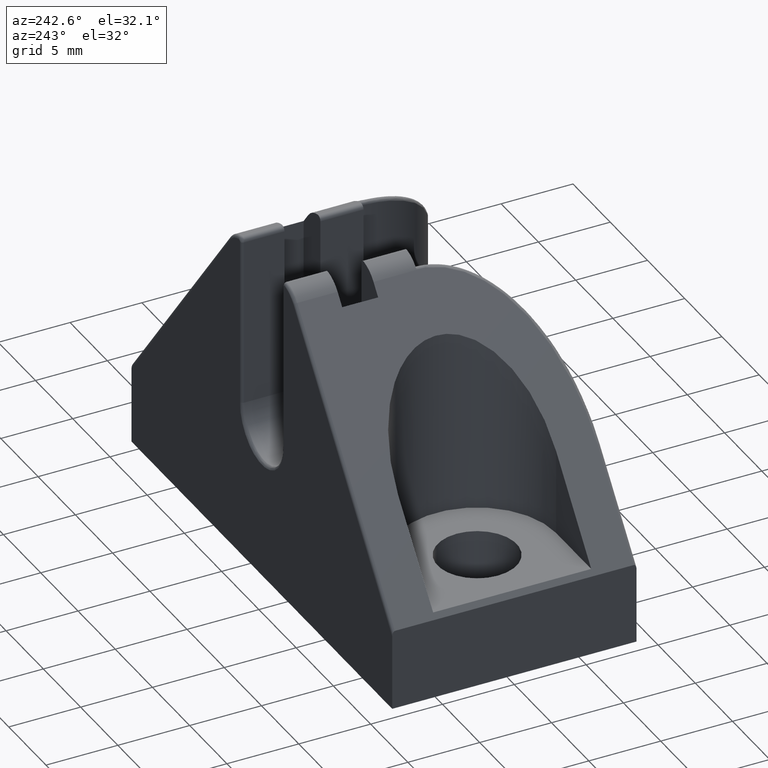
[diagram: clean part render]
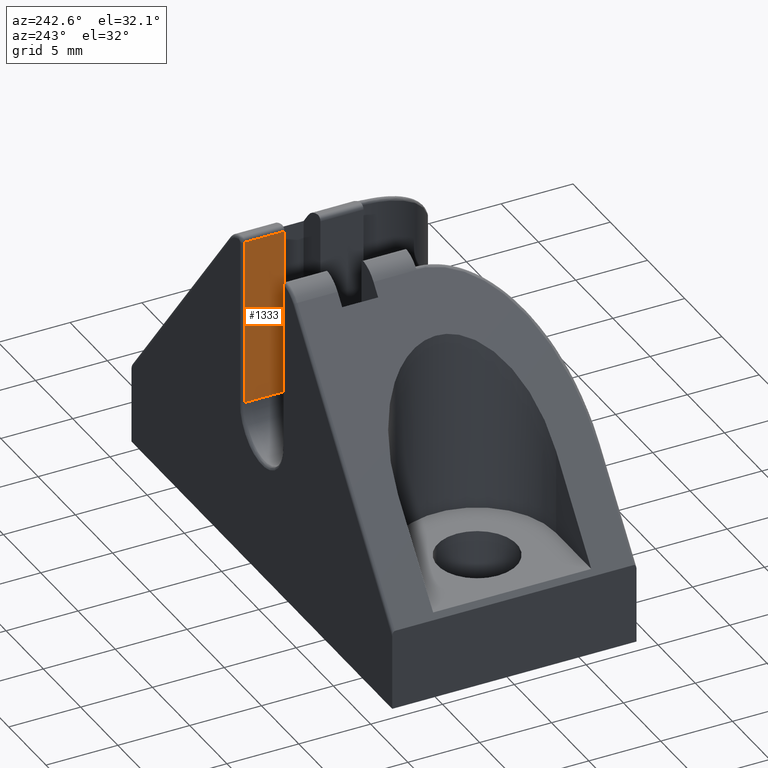
[diagram: same view with one face highlighted and labeled with its STEP entity id]
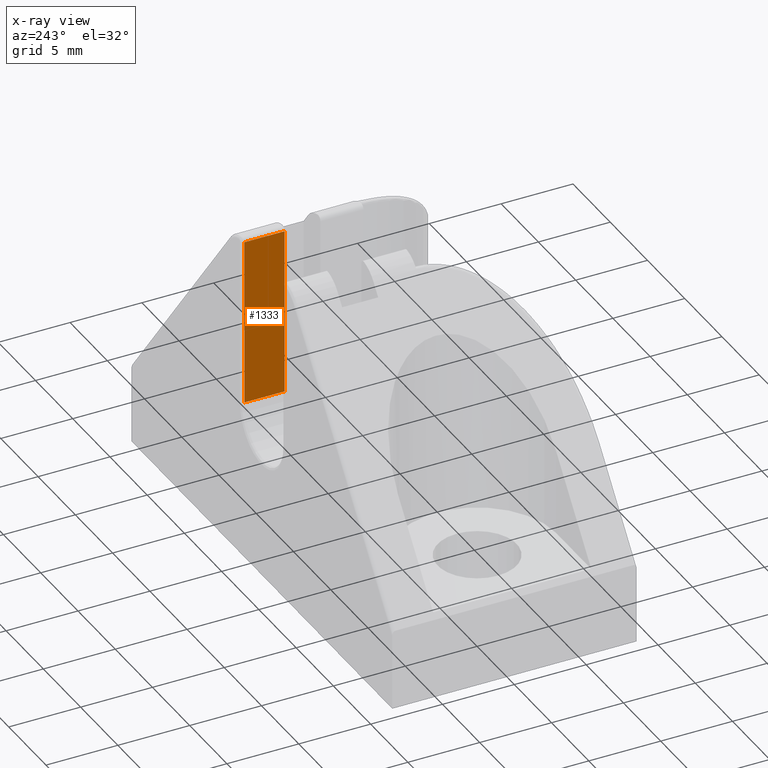
[diagram: x-ray of the same camera — body ghosted, the highlighted face saturated]
A machine part, auxiliary view. The second image highlights one B-rep face of the part: STEP entity #1333.
The next image is the same camera in x-ray: the body ghosted, the highlighted face saturated — about 2% of this face is hidden behind the body in this view.
In plain terms, the highlighted planar face has unit normal (-1, 0, 0).
Its self-contained STEP definition (entity closure, byte-faithful):
#77=PLANE('',#1468);
#124=FACE_OUTER_BOUND('',#207,.T.);
#207=EDGE_LOOP('',(#1028,#1029,#1030,#1031));
#394=LINE('',#3135,#496);
#395=LINE('',#3141,#497);
#396=LINE('',#3142,#498);
#397=LINE('',#3143,#499);
#496=VECTOR('',#1739,2.79999999700794);
#497=VECTOR('',#1746,2.79999999700795);
#498=VECTOR('',#1747,11.6839999999534);
#499=VECTOR('',#1748,11.6839999999534);
#614=VERTEX_POINT('',#3133);
#615=VERTEX_POINT('',#3134);
#616=VERTEX_POINT('',#3139);
#617=VERTEX_POINT('',#3140);
#769=EDGE_CURVE('',#614,#615,#394,.T.);
#772=EDGE_CURVE('',#616,#617,#395,.T.);
#773=EDGE_CURVE('',#616,#614,#396,.T.);
#774=EDGE_CURVE('',#617,#615,#397,.T.);
#1028=ORIENTED_EDGE('',*,*,#772,.F.);
#1029=ORIENTED_EDGE('',*,*,#773,.T.);
#1030=ORIENTED_EDGE('',*,*,#769,.T.);
#1031=ORIENTED_EDGE('',*,*,#774,.F.);
#1333=ADVANCED_FACE('',(#124),#77,.T.);
#1468=AXIS2_PLACEMENT_3D('',#3138,#1744,#1745);
#1739=DIRECTION('',(0.,-1.,0.));
#1744=DIRECTION('center_axis',(-1.,0.,0.));
#1745=DIRECTION('ref_axis',(0.,0.,1.));
#1746=DIRECTION('',(0.,-1.,0.));
#1747=DIRECTION('',(0.,0.,-1.));
#1748=DIRECTION('',(0.,0.,-1.));
#3133=CARTESIAN_POINT('',(-9.75045628818725,8.29999999698612,10.9999863463972));
#3134=CARTESIAN_POINT('',(-9.75045628818725,5.49999999997817,10.9999863463972));
#3135=CARTESIAN_POINT('',(-9.75045628818725,8.29999999698612,10.9999863463972));
#3138=CARTESIAN_POINT('Origin',(-9.75045628818725,8.49999999996635,22.6839863463506));
#3139=CARTESIAN_POINT('',(-9.75045628818725,8.29999999698612,22.6839863463506));
#3140=CARTESIAN_POINT('',(-9.75045628818725,5.49999999997817,22.6839863463506));
#3141=CARTESIAN_POINT('',(-9.75045628818725,8.29999999698612,22.6839863463506));
#3142=CARTESIAN_POINT('',(-9.75045628818725,8.29999999698612,22.6839863463506));
#3143=CARTESIAN_POINT('',(-9.75045628818725,5.49999999997817,22.6839863463506));